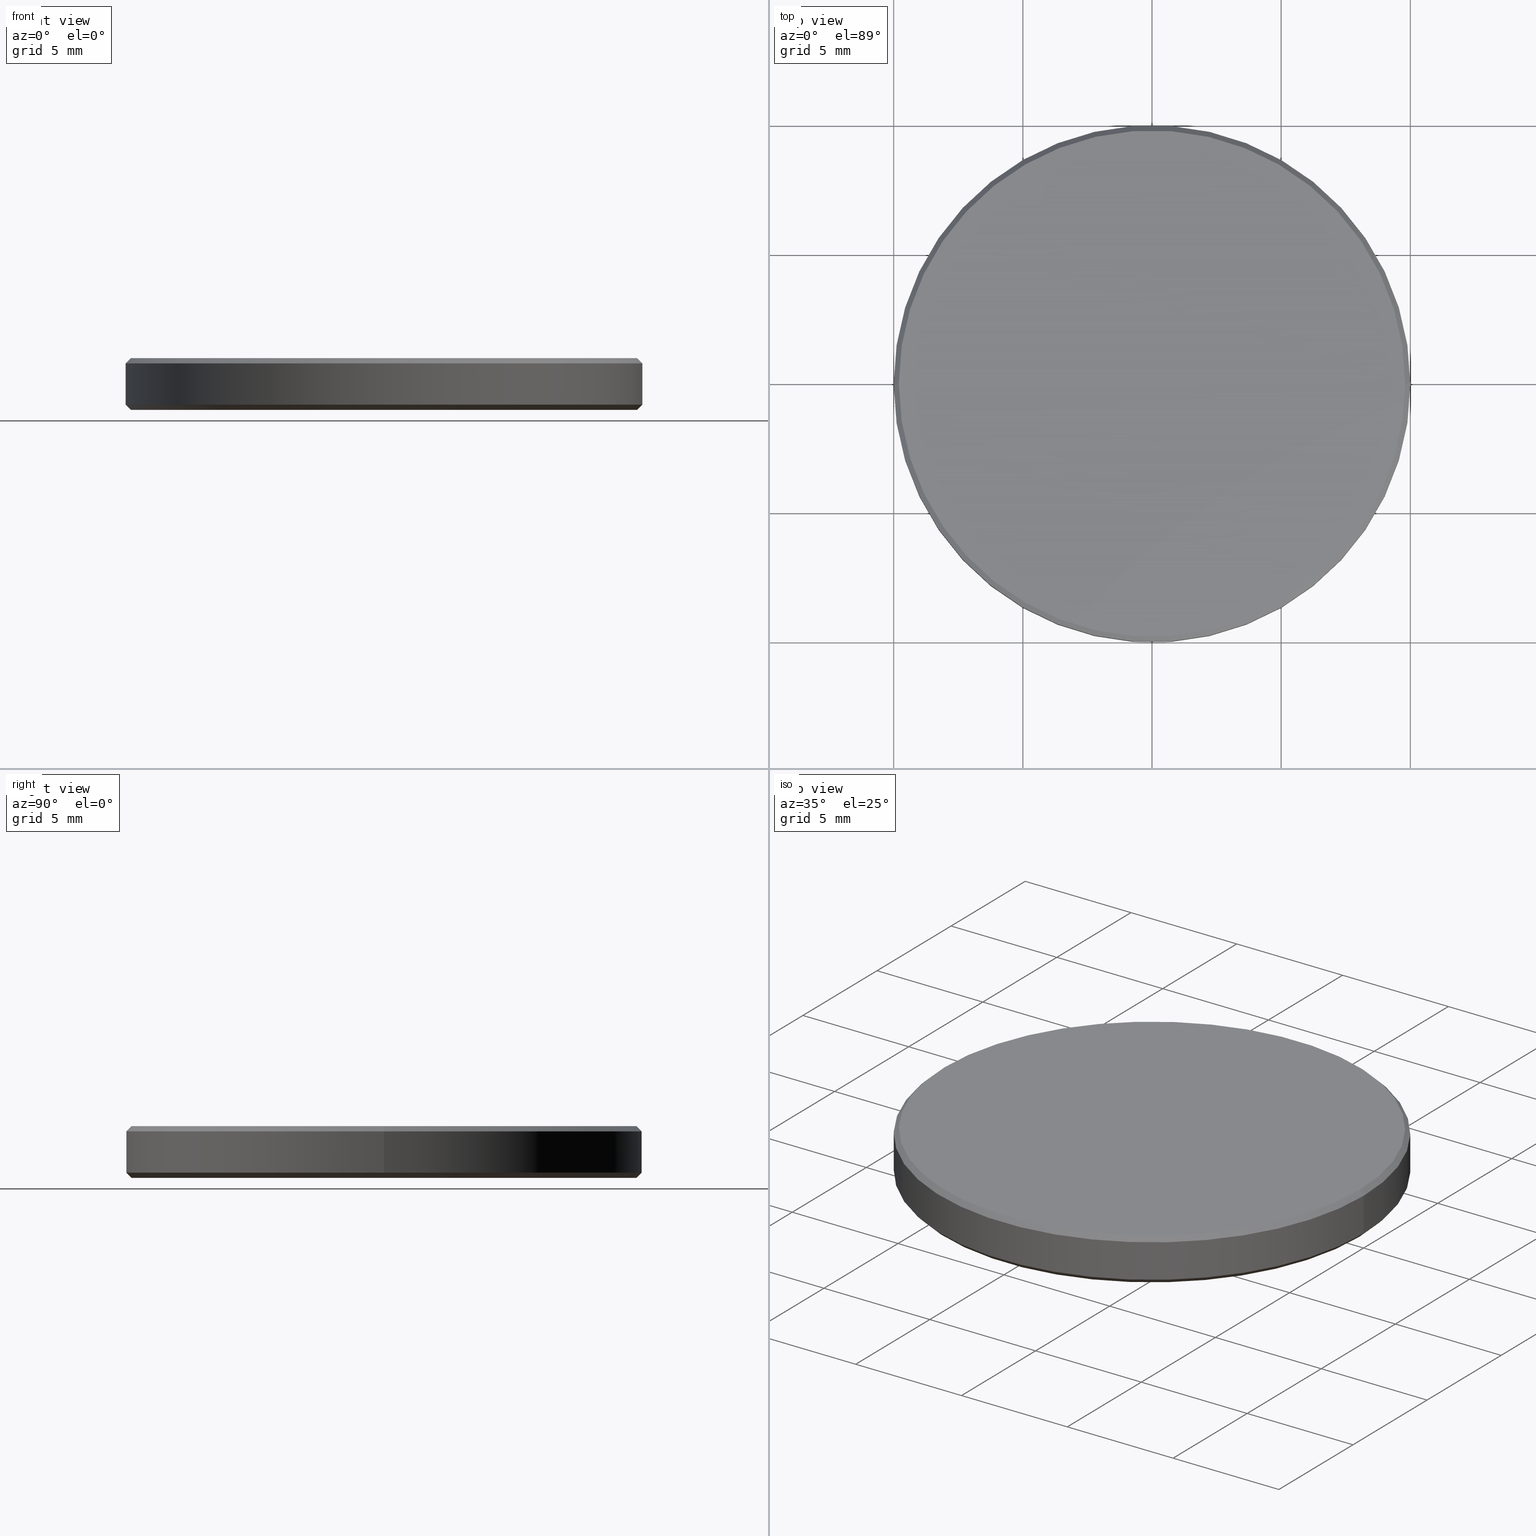
[diagram: canonical four-view strip — front | top / right | iso, engineering-drawing reading convention]
A machine part, canonical four-view strip (front | top / right | iso — engineering-drawing reading convention). The complete STEP part file that produces these views, byte-faithful:
ISO-10303-21;
HEADER;
FILE_DESCRIPTION (( 'STEP AP214' ),
    '1' );
FILE_NAME ('GNIF-40-2350-D20.STEP',
    '2024-07-19T14:37:24',
    ( '' ),
    ( '' ),
    'SwSTEP 2.0',
    'SolidWorks 2022',
    '' );
FILE_SCHEMA (( 'AUTOMOTIVE_DESIGN' ));
ENDSEC;

DATA;
#1 = ORIENTED_EDGE ( 'NONE', *, *, #143, .T. ) ;
#2 = SURFACE_STYLE_FILL_AREA ( #39 ) ;
#3 = CONICAL_SURFACE ( 'NONE', #17, 10.00000000000000000, 0.7853981633974482790 ) ;
#4 = ADVANCED_FACE ( 'NONE', ( #130 ), #52, .T. ) ;
#5 = LINE ( 'NONE', #6, #154 ) ;
#6 = CARTESIAN_POINT ( 'NONE',  ( -10.00000000000000000, 0.000000000000000000, 2.000000000000000000 ) ) ;
#7 = EDGE_CURVE ( 'NONE', #88, #133, #5, .T. ) ;
#8 = AXIS2_PLACEMENT_3D ( 'NONE', #229, #74, #138 ) ;
#9 = CARTESIAN_POINT ( 'NONE',  ( 0.000000000000000000, 0.000000000000000000, 0.2000000000000005107 ) ) ;
#10 = CARTESIAN_POINT ( 'NONE',  ( 0.000000000000000000, 0.000000000000000000, 2.000000000000000000 ) ) ;
#11 = CARTESIAN_POINT ( 'NONE',  ( 0.000000000000000000, 0.000000000000000000, 2.000000000000000000 ) ) ;
#12 = DIRECTION ( 'NONE',  ( 0.000000000000000000, 0.000000000000000000, -1.000000000000000000 ) ) ;
#13 = AXIS2_PLACEMENT_3D ( 'NONE', #44, #190, #89 ) ;
#14 = ADVANCED_FACE ( 'NONE', ( #91 ), #33, .T. ) ;
#15 = COLOUR_RGB ( '',1.000000000000000000, 1.000000000000000000, 1.000000000000000000 ) ;
#16 = ADVANCED_FACE ( 'NONE', ( #103 ), #122, .T. ) ;
#17 = AXIS2_PLACEMENT_3D ( 'NONE', #119, #192, #173 ) ;
#18 = CARTESIAN_POINT ( 'NONE',  ( -9.799999999999998934, 1.212400331155879505E-15, 0.000000000000000000 ) ) ;
#19 = ORIENTED_EDGE ( 'NONE', *, *, #104, .T. ) ;
#20 = LINE ( 'NONE', #97, #95 ) ;
#21 = EDGE_LOOP ( 'NONE', ( #62, #179, #1, #184 ) ) ;
#22 = CARTESIAN_POINT ( 'NONE',  ( 0.000000000000000000, 0.000000000000000000, 0.000000000000000000 ) ) ;
#23 = DIRECTION ( 'NONE',  ( 1.000000000000000000, 0.000000000000000000, 0.000000000000000000 ) ) ;
#24 = VECTOR ( 'NONE', #30, 1000.000000000000000 ) ;
#25 = DIRECTION ( 'NONE',  ( -0.000000000000000000, -0.000000000000000000, -1.000000000000000000 ) ) ;
#26 = ORIENTED_EDGE ( 'NONE', *, *, #31, .T. ) ;
#27 = CONICAL_SURFACE ( 'NONE', #60, 10.00000000000000000, 0.7853981633974482790 ) ;
#28 = LINE ( 'NONE', #71, #24 ) ;
#29 = STYLED_ITEM ( 'NONE', ( #85 ), #233 ) ;
#30 = DIRECTION ( 'NONE',  ( -0.000000000000000000, -0.000000000000000000, -1.000000000000000000 ) ) ;
#31 = EDGE_CURVE ( 'NONE', #189, #88, #132, .T. ) ;
#32 = SURFACE_SIDE_STYLE ('',( #207 ) ) ;
#33 = CONICAL_SURFACE ( 'NONE', #164, 9.799999999999993605, 0.7853981633974482790 ) ;
#34 = AXIS2_PLACEMENT_3D ( 'NONE', #42, #113, #116 ) ;
#35 = MECHANICAL_DESIGN_GEOMETRIC_PRESENTATION_REPRESENTATION (  '', ( #29 ), #208 ) ;
#36 =( GEOMETRIC_REPRESENTATION_CONTEXT ( 3 ) GLOBAL_UNCERTAINTY_ASSIGNED_CONTEXT ( ( #170 ) ) GLOBAL_UNIT_ASSIGNED_CONTEXT ( ( #142, #50, #54 ) ) REPRESENTATION_CONTEXT ( 'NONE', 'WORKASPACE' ) );
#37 = AXIS2_PLACEMENT_3D ( 'NONE', #219, #25, #81 ) ;
#38 = ORIENTED_EDGE ( 'NONE', *, *, #7, .T. ) ;
#39 = FILL_AREA_STYLE ('',( #67 ) ) ;
#40 = FACE_OUTER_BOUND ( 'NONE', #43, .T. ) ;
#41 = ORIENTED_EDGE ( 'NONE', *, *, #78, .F. ) ;
#42 = CARTESIAN_POINT ( 'NONE',  ( 0.000000000000000000, 0.000000000000000000, 2.000000000000000000 ) ) ;
#43 = EDGE_LOOP ( 'NONE', ( #216, #148 ) ) ;
#44 = CARTESIAN_POINT ( 'NONE',  ( 0.000000000000000000, 0.000000000000000000, 2.000000000000000000 ) ) ;
#45 = DIRECTION ( 'NONE',  ( 0.000000000000000000, 0.000000000000000000, 1.000000000000000000 ) ) ;
#46 = PRODUCT_DEFINITION_CONTEXT ( 'detailed design', #230, 'design' ) ;
#47 = CONICAL_SURFACE ( 'NONE', #34, 9.799999999999993605, 0.7853981633974482790 ) ;
#48 = DIRECTION ( 'NONE',  ( 1.000000000000000000, 0.000000000000000000, 0.000000000000000000 ) ) ;
#49 = ORIENTED_EDGE ( 'NONE', *, *, #191, .T. ) ;
#50 =( NAMED_UNIT ( * ) PLANE_ANGLE_UNIT ( ) SI_UNIT ( $, .RADIAN. ) );
#51 = CIRCLE ( 'NONE', #86, 9.799999999999993605 ) ;
#52 = PLANE ( 'NONE',  #123 ) ;
#53 = CARTESIAN_POINT ( 'NONE',  ( 0.000000000000000000, 0.000000000000000000, 1.799999999999992495 ) ) ;
#54 =( NAMED_UNIT ( * ) SI_UNIT ( $, .STERADIAN. ) SOLID_ANGLE_UNIT ( ) );
#55 = EDGE_CURVE ( 'NONE', #88, #115, #72, .T. ) ;
#56 =( LENGTH_UNIT ( ) NAMED_UNIT ( * ) SI_UNIT ( .MILLI., .METRE. ) );
#57 = LINE ( 'NONE', #161, #195 ) ;
#58 = MANIFOLD_SOLID_BREP ( '����1', #139 ) ;
#59 = VERTEX_POINT ( 'NONE', #75 ) ;
#60 = AXIS2_PLACEMENT_3D ( 'NONE', #217, #117, #23 ) ;
#61 = EDGE_CURVE ( 'NONE', #115, #59, #28, .T. ) ;
#62 = ORIENTED_EDGE ( 'NONE', *, *, #98, .F. ) ;
#63 = ORIENTED_EDGE ( 'NONE', *, *, #61, .T. ) ;
#64 = PRESENTATION_LAYER_ASSIGNMENT (  '', '', ( #29 ) ) ;
#65 = FACE_OUTER_BOUND ( 'NONE', #197, .T. ) ;
#66 = EDGE_LOOP ( 'NONE', ( #202, #19, #125, #185 ) ) ;
#67 = FILL_AREA_STYLE_COLOUR ( '', #15 ) ;
#68 = EDGE_CURVE ( 'NONE', #189, #92, #169, .T. ) ;
#69 =( NAMED_UNIT ( * ) SI_UNIT ( $, .STERADIAN. ) SOLID_ANGLE_UNIT ( ) );
#70 = SHAPE_DEFINITION_REPRESENTATION ( #213, #233 ) ;
#71 = CARTESIAN_POINT ( 'NONE',  ( 10.00000000000000000, 1.224646799147353256E-15, 2.000000000000000000 ) ) ;
#72 = CIRCLE ( 'NONE', #149, 10.00000000000000000 ) ;
#73 = DIRECTION ( 'NONE',  ( 1.000000000000000000, 0.000000000000000000, 0.000000000000000000 ) ) ;
#74 = DIRECTION ( 'NONE',  ( 0.000000000000000000, 0.000000000000000000, 1.000000000000000000 ) ) ;
#75 = CARTESIAN_POINT ( 'NONE',  ( 10.00000000000000000, 1.224646799147353256E-15, 0.2000000000000005107 ) ) ;
#76 = CIRCLE ( 'NONE', #118, 10.00000000000000000 ) ;
#77 = FILL_AREA_STYLE_COLOUR ( '', #178 ) ;
#78 = EDGE_CURVE ( 'NONE', #115, #88, #76, .T. ) ;
#79 = ORIENTED_EDGE ( 'NONE', *, *, #177, .T. ) ;
#80 = CARTESIAN_POINT ( 'NONE',  ( 0.000000000000000000, 0.000000000000000000, 0.2000000000000005107 ) ) ;
#81 = DIRECTION ( 'NONE',  ( 1.000000000000000000, 0.000000000000000000, 0.000000000000000000 ) ) ;
#82 = AXIS2_PLACEMENT_3D ( 'NONE', #147, #151, #99 ) ;
#83 = EDGE_LOOP ( 'NONE', ( #127, #168, #38, #49 ) ) ;
#84 = ORIENTED_EDGE ( 'NONE', *, *, #104, .F. ) ;
#85 = PRESENTATION_STYLE_ASSIGNMENT (( #200 ) ) ;
#86 = AXIS2_PLACEMENT_3D ( 'NONE', #11, #93, #141 ) ;
#87 = ORIENTED_EDGE ( 'NONE', *, *, #143, .F. ) ;
#88 = VERTEX_POINT ( 'NONE', #188 ) ;
#89 = DIRECTION ( 'NONE',  ( -1.000000000000000000, 0.000000000000000000, 0.000000000000000000 ) ) ;
#90 = EDGE_LOOP ( 'NONE', ( #218, #182 ) ) ;
#91 = FACE_OUTER_BOUND ( 'NONE', #102, .T. ) ;
#92 = VERTEX_POINT ( 'NONE', #96 ) ;
#93 = DIRECTION ( 'NONE',  ( 0.000000000000000000, 0.000000000000000000, 1.000000000000000000 ) ) ;
#94 = CARTESIAN_POINT ( 'NONE',  ( 0.000000000000000000, 0.000000000000000000, 2.000000000000000000 ) ) ;
#95 = VECTOR ( 'NONE', #163, 1000.000000000000114 ) ;
#96 = CARTESIAN_POINT ( 'NONE',  ( 9.799999999999993605, 1.212400331155879111E-15, 2.000000000000000000 ) ) ;
#97 = CARTESIAN_POINT ( 'NONE',  ( 10.00000000000000000, 0.000000000000000000, 0.2000000000000005107 ) ) ;
#98 = EDGE_CURVE ( 'NONE', #199, #133, #57, .T. ) ;
#99 = DIRECTION ( 'NONE',  ( 1.000000000000000000, 0.000000000000000000, 0.000000000000000000 ) ) ;
#100 = AXIS2_PLACEMENT_3D ( 'NONE', #22, #239, #181 ) ;
#101 = EDGE_CURVE ( 'NONE', #129, #199, #231, .T. ) ;
#102 = EDGE_LOOP ( 'NONE', ( #84, #225, #26, #41 ) ) ;
#103 = FACE_OUTER_BOUND ( 'NONE', #83, .T. ) ;
#104 = EDGE_CURVE ( 'NONE', #92, #115, #201, .T. ) ;
#105 = PRESENTATION_STYLE_ASSIGNMENT (( #232 ) ) ;
#106 = AXIS2_PLACEMENT_3D ( 'NONE', #134, #222, #73 ) ;
#107 = APPLICATION_CONTEXT ( 'automotive_design' ) ;
#108 = ADVANCED_FACE ( 'NONE', ( #204 ), #47, .T. ) ;
#109 = DIRECTION ( 'NONE',  ( 1.000000000000000000, 0.000000000000000000, 0.000000000000000000 ) ) ;
#110 = SURFACE_SIDE_STYLE ('',( #2 ) ) ;
#111 = PLANE ( 'NONE',  #100 ) ;
#112 = ORIENTED_EDGE ( 'NONE', *, *, #177, .F. ) ;
#113 = DIRECTION ( 'NONE',  ( 0.000000000000000000, 0.000000000000000000, -1.000000000000000000 ) ) ;
#114 = ORIENTED_EDGE ( 'NONE', *, *, #55, .T. ) ;
#115 = VERTEX_POINT ( 'NONE', #223 ) ;
#116 = DIRECTION ( 'NONE',  ( -1.000000000000000000, 0.000000000000000000, 0.000000000000000000 ) ) ;
#117 = DIRECTION ( 'NONE',  ( -0.000000000000000000, -0.000000000000000000, 1.000000000000000000 ) ) ;
#118 = AXIS2_PLACEMENT_3D ( 'NONE', #53, #12, #153 ) ;
#119 = CARTESIAN_POINT ( 'NONE',  ( 0.000000000000000000, 0.000000000000000000, 0.2000000000000005107 ) ) ;
#120 = VECTOR ( 'NONE', #212, 1000.000000000000114 ) ;
#121 = CIRCLE ( 'NONE', #140, 10.00000000000000000 ) ;
#122 = CYLINDRICAL_SURFACE ( 'NONE', #221, 10.00000000000000000 ) ;
#123 = AXIS2_PLACEMENT_3D ( 'NONE', #10, #45, #171 ) ;
#124 = CARTESIAN_POINT ( 'NONE',  ( -9.799999999999993605, 0.000000000000000000, 2.000000000000000000 ) ) ;
#125 = ORIENTED_EDGE ( 'NONE', *, *, #55, .F. ) ;
#126 = DIRECTION ( 'NONE',  ( -0.000000000000000000, -0.000000000000000000, 1.000000000000000000 ) ) ;
#127 = ORIENTED_EDGE ( 'NONE', *, *, #61, .F. ) ;
#128 = CYLINDRICAL_SURFACE ( 'NONE', #13, 10.00000000000000000 ) ;
#129 = VERTEX_POINT ( 'NONE', #237 ) ;
#130 = FACE_OUTER_BOUND ( 'NONE', #90, .T. ) ;
#131 = FACE_OUTER_BOUND ( 'NONE', #21, .T. ) ;
#132 = LINE ( 'NONE', #136, #120 ) ;
#133 = VERTEX_POINT ( 'NONE', #165 ) ;
#134 = CARTESIAN_POINT ( 'NONE',  ( 0.000000000000000000, 0.000000000000000000, 0.000000000000000000 ) ) ;
#135 = ADVANCED_FACE ( 'NONE', ( #131 ), #27, .T. ) ;
#136 = CARTESIAN_POINT ( 'NONE',  ( -9.799999999999993605, 0.000000000000000000, 2.000000000000000000 ) ) ;
#137 = DIRECTION ( 'NONE',  ( -0.000000000000000000, -0.000000000000000000, -1.000000000000000000 ) ) ;
#138 = DIRECTION ( 'NONE',  ( 1.000000000000000000, 0.000000000000000000, 0.000000000000000000 ) ) ;
#139 = CLOSED_SHELL ( 'NONE', ( #159, #108, #158, #16, #4, #234, #14, #135 ) ) ;
#140 = AXIS2_PLACEMENT_3D ( 'NONE', #9, #156, #228 ) ;
#141 = DIRECTION ( 'NONE',  ( 1.000000000000000000, 0.000000000000000000, 0.000000000000000000 ) ) ;
#142 =( LENGTH_UNIT ( ) NAMED_UNIT ( * ) SI_UNIT ( .MILLI., .METRE. ) );
#143 = EDGE_CURVE ( 'NONE', #129, #59, #20, .T. ) ;
#144 = UNCERTAINTY_MEASURE_WITH_UNIT (LENGTH_MEASURE( 1.000000000000000082E-05 ), #203, 'distance_accuracy_value', 'NONE');
#145 = PRODUCT ( 'GNIF-40-2350-D20', 'GNIF-40-2350-D20', '', ( #155 ) ) ;
#146 = ORIENTED_EDGE ( 'NONE', *, *, #7, .F. ) ;
#147 = CARTESIAN_POINT ( 'NONE',  ( 0.000000000000000000, 0.000000000000000000, 0.000000000000000000 ) ) ;
#148 = ORIENTED_EDGE ( 'NONE', *, *, #150, .T. ) ;
#149 = AXIS2_PLACEMENT_3D ( 'NONE', #172, #193, #48 ) ;
#150 = EDGE_CURVE ( 'NONE', #199, #129, #238, .T. ) ;
#151 = DIRECTION ( 'NONE',  ( -0.000000000000000000, -0.000000000000000000, -1.000000000000000000 ) ) ;
#152 = ORIENTED_EDGE ( 'NONE', *, *, #98, .T. ) ;
#153 = DIRECTION ( 'NONE',  ( 1.000000000000000000, 0.000000000000000000, 0.000000000000000000 ) ) ;
#154 = VECTOR ( 'NONE', #137, 1000.000000000000000 ) ;
#155 = PRODUCT_CONTEXT ( 'NONE', #107, 'mechanical' ) ;
#156 = DIRECTION ( 'NONE',  ( -0.000000000000000000, -0.000000000000000000, 1.000000000000000000 ) ) ;
#157 = DIRECTION ( 'NONE',  ( -1.000000000000000000, 0.000000000000000000, 0.000000000000000000 ) ) ;
#158 = ADVANCED_FACE ( 'NONE', ( #65 ), #128, .T. ) ;
#159 = ADVANCED_FACE ( 'NONE', ( #175 ), #3, .T. ) ;
#160 =( NAMED_UNIT ( * ) PLANE_ANGLE_UNIT ( ) SI_UNIT ( $, .RADIAN. ) );
#161 = CARTESIAN_POINT ( 'NONE',  ( -10.00000000000000000, 1.224646799147353256E-15, 0.2000000000000005107 ) ) ;
#162 =( NAMED_UNIT ( * ) SI_UNIT ( $, .STERADIAN. ) SOLID_ANGLE_UNIT ( ) );
#163 = DIRECTION ( 'NONE',  ( 0.7071067811865474617, 0.000000000000000000, 0.7071067811865474617 ) ) ;
#164 = AXIS2_PLACEMENT_3D ( 'NONE', #176, #224, #157 ) ;
#165 = CARTESIAN_POINT ( 'NONE',  ( -10.00000000000000000, 0.000000000000000000, 0.2000000000000005107 ) ) ;
#166 = PRODUCT_DEFINITION_FORMATION_WITH_SPECIFIED_SOURCE ( '�κ�', '', #145, .NOT_KNOWN. ) ;
#167 = PRODUCT_RELATED_PRODUCT_CATEGORY ( 'part', '', ( #145 ) ) ;
#168 = ORIENTED_EDGE ( 'NONE', *, *, #78, .T. ) ;
#169 = CIRCLE ( 'NONE', #8, 9.799999999999993605 ) ;
#170 = UNCERTAINTY_MEASURE_WITH_UNIT (LENGTH_MEASURE( 1.000000000000000082E-05 ), #142, 'distance_accuracy_value', 'NONE');
#171 = DIRECTION ( 'NONE',  ( 1.000000000000000000, 0.000000000000000000, -0.000000000000000000 ) ) ;
#172 = CARTESIAN_POINT ( 'NONE',  ( 0.000000000000000000, 0.000000000000000000, 1.799999999999992495 ) ) ;
#173 = DIRECTION ( 'NONE',  ( 1.000000000000000000, 0.000000000000000000, 0.000000000000000000 ) ) ;
#174 = DIRECTION ( 'NONE',  ( -0.000000000000000000, -0.000000000000000000, -1.000000000000000000 ) ) ;
#175 = FACE_OUTER_BOUND ( 'NONE', #236, .T. ) ;
#176 = CARTESIAN_POINT ( 'NONE',  ( 0.000000000000000000, 0.000000000000000000, 2.000000000000000000 ) ) ;
#177 = EDGE_CURVE ( 'NONE', #59, #133, #121, .T. ) ;
#178 = COLOUR_RGB ( '',1.000000000000000000, 1.000000000000000000, 1.000000000000000000 ) ;
#179 = ORIENTED_EDGE ( 'NONE', *, *, #101, .F. ) ;
#180 =( NAMED_UNIT ( * ) PLANE_ANGLE_UNIT ( ) SI_UNIT ( $, .RADIAN. ) );
#181 = DIRECTION ( 'NONE',  ( 1.000000000000000000, 0.000000000000000000, -0.000000000000000000 ) ) ;
#182 = ORIENTED_EDGE ( 'NONE', *, *, #183, .T. ) ;
#183 = EDGE_CURVE ( 'NONE', #92, #189, #51, .T. ) ;
#184 = ORIENTED_EDGE ( 'NONE', *, *, #191, .F. ) ;
#185 = ORIENTED_EDGE ( 'NONE', *, *, #31, .F. ) ;
#186 = MECHANICAL_DESIGN_GEOMETRIC_PRESENTATION_REPRESENTATION (  '', ( #214 ), #36 ) ;
#187 = APPLICATION_PROTOCOL_DEFINITION ( 'draft international standard', 'automotive_design', 1998, #230 ) ;
#188 = CARTESIAN_POINT ( 'NONE',  ( -10.00000000000000000, 0.000000000000000000, 1.799999999999992495 ) ) ;
#189 = VERTEX_POINT ( 'NONE', #124 ) ;
#190 = DIRECTION ( 'NONE',  ( -0.000000000000000000, -0.000000000000000000, -1.000000000000000000 ) ) ;
#191 = EDGE_CURVE ( 'NONE', #133, #59, #211, .T. ) ;
#192 = DIRECTION ( 'NONE',  ( -0.000000000000000000, -0.000000000000000000, 1.000000000000000000 ) ) ;
#193 = DIRECTION ( 'NONE',  ( 0.000000000000000000, 0.000000000000000000, -1.000000000000000000 ) ) ;
#194 = DIRECTION ( 'NONE',  ( -1.000000000000000000, 0.000000000000000000, 0.000000000000000000 ) ) ;
#195 = VECTOR ( 'NONE', #235, 1000.000000000000114 ) ;
#196 = AXIS2_PLACEMENT_3D ( 'NONE', #80, #126, #109 ) ;
#197 = EDGE_LOOP ( 'NONE', ( #114, #63, #79, #146 ) ) ;
#198 = APPLICATION_PROTOCOL_DEFINITION ( 'draft international standard', 'automotive_design', 1998, #107 ) ;
#199 = VERTEX_POINT ( 'NONE', #18 ) ;
#200 = SURFACE_STYLE_USAGE ( .BOTH. , #110 ) ;
#201 = LINE ( 'NONE', #205, #215 ) ;
#202 = ORIENTED_EDGE ( 'NONE', *, *, #183, .F. ) ;
#203 =( LENGTH_UNIT ( ) NAMED_UNIT ( * ) SI_UNIT ( .MILLI., .METRE. ) );
#204 = FACE_OUTER_BOUND ( 'NONE', #66, .T. ) ;
#205 = CARTESIAN_POINT ( 'NONE',  ( 9.799999999999993605, 1.200153863164405359E-15, 2.000000000000000000 ) ) ;
#206 = UNCERTAINTY_MEASURE_WITH_UNIT (LENGTH_MEASURE( 1.000000000000000082E-05 ), #56, 'distance_accuracy_value', 'NONE');
#207 = SURFACE_STYLE_FILL_AREA ( #210 ) ;
#208 =( GEOMETRIC_REPRESENTATION_CONTEXT ( 3 ) GLOBAL_UNCERTAINTY_ASSIGNED_CONTEXT ( ( #144 ) ) GLOBAL_UNIT_ASSIGNED_CONTEXT ( ( #203, #180, #69 ) ) REPRESENTATION_CONTEXT ( 'NONE', 'WORKASPACE' ) );
#209 = PRODUCT_DEFINITION ( 'δ֪', '', #166, #46 ) ;
#210 = FILL_AREA_STYLE ('',( #77 ) ) ;
#211 = CIRCLE ( 'NONE', #196, 10.00000000000000000 ) ;
#212 = DIRECTION ( 'NONE',  ( -0.7071067811865474617, 0.000000000000000000, -0.7071067811865474617 ) ) ;
#213 = PRODUCT_DEFINITION_SHAPE ( 'NONE', 'NONE',  #209 ) ;
#214 = STYLED_ITEM ( 'NONE', ( #105 ), #58 ) ;
#215 = VECTOR ( 'NONE', #240, 1000.000000000000114 ) ;
#216 = ORIENTED_EDGE ( 'NONE', *, *, #101, .T. ) ;
#217 = CARTESIAN_POINT ( 'NONE',  ( 0.000000000000000000, 0.000000000000000000, 0.2000000000000005107 ) ) ;
#218 = ORIENTED_EDGE ( 'NONE', *, *, #68, .T. ) ;
#219 = CARTESIAN_POINT ( 'NONE',  ( 0.000000000000000000, 0.000000000000000000, 0.000000000000000000 ) ) ;
#220 = ORIENTED_EDGE ( 'NONE', *, *, #150, .F. ) ;
#221 = AXIS2_PLACEMENT_3D ( 'NONE', #94, #174, #194 ) ;
#222 = DIRECTION ( 'NONE',  ( 0.000000000000000000, 0.000000000000000000, 1.000000000000000000 ) ) ;
#223 = CARTESIAN_POINT ( 'NONE',  ( 10.00000000000000000, 1.224646799147353256E-15, 1.799999999999992495 ) ) ;
#224 = DIRECTION ( 'NONE',  ( 0.000000000000000000, 0.000000000000000000, -1.000000000000000000 ) ) ;
#225 = ORIENTED_EDGE ( 'NONE', *, *, #68, .F. ) ;
#226 = PRESENTATION_LAYER_ASSIGNMENT (  '', '', ( #214 ) ) ;
#227 =( GEOMETRIC_REPRESENTATION_CONTEXT ( 3 ) GLOBAL_UNCERTAINTY_ASSIGNED_CONTEXT ( ( #206 ) ) GLOBAL_UNIT_ASSIGNED_CONTEXT ( ( #56, #160, #162 ) ) REPRESENTATION_CONTEXT ( 'NONE', 'WORKASPACE' ) );
#228 = DIRECTION ( 'NONE',  ( 1.000000000000000000, 0.000000000000000000, 0.000000000000000000 ) ) ;
#229 = CARTESIAN_POINT ( 'NONE',  ( 0.000000000000000000, 0.000000000000000000, 2.000000000000000000 ) ) ;
#230 = APPLICATION_CONTEXT ( 'automotive_design' ) ;
#231 = CIRCLE ( 'NONE', #82, 9.799999999999998934 ) ;
#232 = SURFACE_STYLE_USAGE ( .BOTH. , #32 ) ;
#233 = ADVANCED_BREP_SHAPE_REPRESENTATION ( 'GNIF-40-2350-D20', ( #58, #106 ), #227 ) ;
#234 = ADVANCED_FACE ( 'NONE', ( #40 ), #111, .F. ) ;
#235 = DIRECTION ( 'NONE',  ( -0.7071067811865474617, 8.659560562354932858E-17, 0.7071067811865474617 ) ) ;
#236 = EDGE_LOOP ( 'NONE', ( #220, #152, #112, #87 ) ) ;
#237 = CARTESIAN_POINT ( 'NONE',  ( 9.799999999999998934, 0.000000000000000000, 0.000000000000000000 ) ) ;
#238 = CIRCLE ( 'NONE', #37, 9.799999999999998934 ) ;
#239 = DIRECTION ( 'NONE',  ( 0.000000000000000000, 0.000000000000000000, 1.000000000000000000 ) ) ;
#240 = DIRECTION ( 'NONE',  ( 0.7071067811865474617, 8.659560562354932858E-17, -0.7071067811865474617 ) ) ;
ENDSEC;
END-ISO-10303-21;
